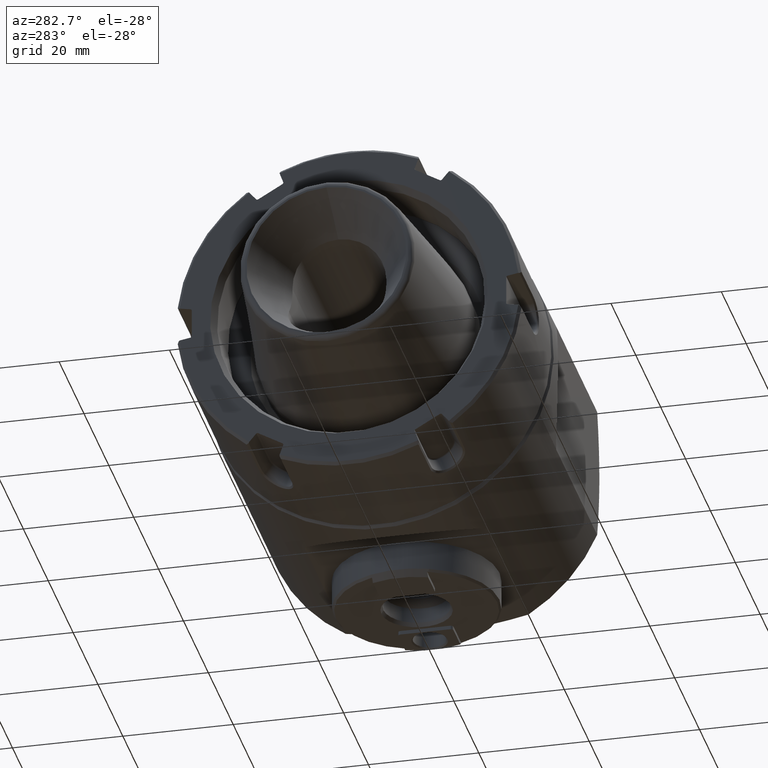
[diagram: clean part render]
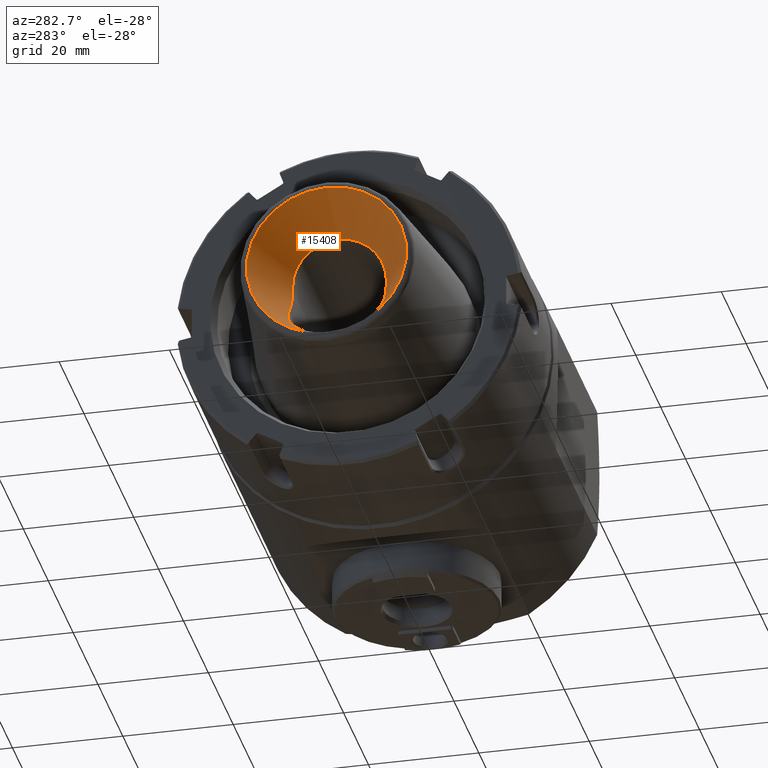
[diagram: same view with one face highlighted and labeled with its STEP entity id]
A machine part, auxiliary view. The second image highlights one B-rep face of the part: STEP entity #15408.
In plain terms, the highlighted conical surface has half-angle 30 deg.
Its self-contained STEP definition (entity closure, byte-faithful):
#375 = CARTESIAN_POINT ( 'NONE',  ( -41.62357660211500100, 0.6016993642104147000, -13.98470534563379900 ) ) ;
#484 = CARTESIAN_POINT ( 'NONE',  ( -36.41542795255660500, 8.340888947746762500, -7.154654502034642100 ) ) ;
#547 = ORIENTED_EDGE ( 'NONE', *, *, #4400, .T. ) ;
#571 = CARTESIAN_POINT ( 'NONE',  ( -36.62359291228537500, -8.350133785200505100, -7.378962801336557600 ) ) ;
#676 = CARTESIAN_POINT ( 'NONE',  ( -39.24026204300471200, 6.763960253452825800, -10.65492165973789800 ) ) ;
#779 = CARTESIAN_POINT ( 'NONE',  ( -41.24376904555434500, -3.120540852876987800, -13.43013070009230800 ) ) ;
#1168 = CARTESIAN_POINT ( 'NONE',  ( -34.92094120700150500, 8.500000000000003600, -5.500000000000000000 ) ) ;
#1179 = CARTESIAN_POINT ( 'NONE',  ( -32.94594722981266700, 2.212921603388399800, 8.711607772922752300 ) ) ;
#1300 = VERTEX_POINT ( 'NONE', #25104 ) ;
#1383 = CARTESIAN_POINT ( 'NONE',  ( -32.97245384754072700, -0.5498109188524646900, 8.986834180173476100 ) ) ;
#1492 = CARTESIAN_POINT ( 'NONE',  ( -32.76991501545869300, 5.626468428842378500, 6.895345204134754300 ) ) ;
#1683 = CARTESIAN_POINT ( 'NONE',  ( -32.96320677942300400, -1.386604485480722900, 8.890765297542261100 ) ) ;
#1711 = VERTEX_POINT ( 'NONE', #1168 ) ;
#2553 = CARTESIAN_POINT ( 'NONE',  ( -33.47352028211558000, 8.500000000000001800, -3.766917833987092100 ) ) ;
#2604 = B_SPLINE_CURVE_WITH_KNOTS ( 'NONE', 3,
 ( #16463, #21286, #6982, #2553, #7287, #23444, #26130, #16782, #16873, #25830, #17278, #26533, #24271, #3154 ),
 .UNSPECIFIED., .F., .F.,
 ( 4, 2, 2, 2, 2, 2, 4 ),
 ( 0.04185788804350051900, 0.04354466969871030600, 0.04523145135392009400, 0.04607484218152498700, 0.04691823300912988100, 0.04776162383673478200, 0.04860501466433967500 ),
 .UNSPECIFIED. ) ;
#2761 = EDGE_CURVE ( 'NONE', #1300, #24038, #23268, .T. ) ;
#2773 = CARTESIAN_POINT ( 'NONE',  ( -37.22919258266909300, 8.092203969601076400, -8.113429070541712900 ) ) ;
#2870 = CARTESIAN_POINT ( 'NONE',  ( -34.92094120700150500, 8.500000000000003600, -5.500000000000000000 ) ) ;
#2964 = CARTESIAN_POINT ( 'NONE',  ( -39.40274078780929300, 6.593858561502252700, -10.87105990789311200 ) ) ;
#3067 = CARTESIAN_POINT ( 'NONE',  ( -40.64162835531909900, -4.726422937569831900, -12.57109599155679900 ) ) ;
#3154 = CARTESIAN_POINT ( 'NONE',  ( -32.13314449400395000, 8.500000000000001800, 0.5000000000000000000 ) ) ;
#3161 = CARTESIAN_POINT ( 'NONE',  ( -38.90229333734145500, 7.080495510305073700, -10.21072807078420500 ) ) ;
#3191 = VERTEX_POINT ( 'NONE', #4654 ) ;
#3859 = CARTESIAN_POINT ( 'NONE',  ( -32.88915544760107700, 3.769600984441432000, 8.123503159228253200 ) ) ;
#4273 = CARTESIAN_POINT ( 'NONE',  ( -32.41132891258876500, -8.500000000000001800, -1.754179349024693300 ) ) ;
#4349 = EDGE_CURVE ( 'NONE', #16169, #16169, #24496, .T. ) ;
#4350 = CARTESIAN_POINT ( 'NONE',  ( -32.55949977964554900, -7.365159722976817300, 4.752287306826651100 ) ) ;
#4400 = EDGE_CURVE ( 'NONE', #3191, #1300, #13438, .T. ) ;
#4654 = CARTESIAN_POINT ( 'NONE',  ( -32.13314449400395000, 8.500000000000001800, 0.5000000000000000000 ) ) ;
#5111 = CARTESIAN_POINT ( 'NONE',  ( -40.15013538908900900, 5.617659663406736400, -11.88542350136718200 ) ) ;
#5219 = CARTESIAN_POINT ( 'NONE',  ( -41.57642585859112200, 1.237529174319250000, -13.91550880635429600 ) ) ;
#5319 = CARTESIAN_POINT ( 'NONE',  ( -38.72723439070662000, 7.226367522329489600, -9.983266874843714300 ) ) ;
#5507 = CARTESIAN_POINT ( 'NONE',  ( -40.86387433014609600, -4.217676070712312400, -12.88584327407085400 ) ) ;
#5915 = CARTESIAN_POINT ( 'NONE',  ( -32.55919361914128300, 7.382834682675247800, 4.748696930307756900 ) ) ;
#6027 = CARTESIAN_POINT ( 'NONE',  ( -32.93028221736538100, 2.745571098532284100, 8.549184032060178900 ) ) ;
#6224 = CARTESIAN_POINT ( 'NONE',  ( -32.13314449400395000, 8.500000000000001800, 0.5000000000000000000 ) ) ;
#6246 = CARTESIAN_POINT ( 'NONE',  ( -34.16589989647840000, -8.500000000000001800, -4.666431962360143800 ) ) ;
#6333 = CARTESIAN_POINT ( 'NONE',  ( -32.90104760083484300, -3.509943185076740000, 8.246485513787979100 ) ) ;
#6524 = CARTESIAN_POINT ( 'NONE',  ( -32.65099510663089400, -6.761797742208182500, 5.680170602532512300 ) ) ;
#6982 = CARTESIAN_POINT ( 'NONE',  ( -34.16589989647840000, 8.500000000000003600, -4.666431962360146500 ) ) ;
#7175 = DIRECTION ( 'NONE',  ( 0.0000000000000000000, 0.0000000000000000000, 1.000000000000000000 ) ) ;
#7287 = CARTESIAN_POINT ( 'NONE',  ( -33.15021862702704400, 8.500000000000005300, -3.289395833066999700 ) ) ;
#7500 = CARTESIAN_POINT ( 'NONE',  ( -41.38692368510027800, 2.471754276345374800, -13.63863104905494300 ) ) ;
#7566 = CARTESIAN_POINT ( 'NONE',  ( -42.50000000000001400, 0.0000000000000000000, 0.0000000000000000000 ) ) ;
#7692 = CARTESIAN_POINT ( 'NONE',  ( -41.24725134210640200, 3.060395495769783200, -13.43604838472806600 ) ) ;
#7890 = AXIS2_PLACEMENT_3D ( 'NONE', #24659, #29782, #20335 ) ;
#7896 = CARTESIAN_POINT ( 'NONE',  ( -40.26704245411199400, -5.428442362108654600, -12.04725905589530700 ) ) ;
#8385 = CARTESIAN_POINT ( 'NONE',  ( -32.95257408573875300, 1.940108714967724500, 8.780379128559351500 ) ) ;
#8479 = CARTESIAN_POINT ( 'NONE',  ( -32.43419030000310200, 7.961667135377039600, 3.489850016703999600 ) ) ;
#8495 = CARTESIAN_POINT ( 'NONE',  ( -34.53606089955118100, -8.500000000000005300, -5.090961387397044300 ) ) ;
#8807 = CARTESIAN_POINT ( 'NONE',  ( -32.74530282732651900, -8.500000000000001800, -2.539682007511249400 ) ) ;
#8917 = EDGE_LOOP ( 'NONE', ( #22850, #547, #22208, #29848 ) ) ;
#9003 = CARTESIAN_POINT ( 'NONE',  ( -32.93196815502135200, -2.737143954203102400, 8.566535742507049600 ) ) ;
#9879 = CARTESIAN_POINT ( 'NONE',  ( -41.44562162598223400, 2.170746408544962600, -13.72420006736099300 ) ) ;
#10077 = CARTESIAN_POINT ( 'NONE',  ( -37.81684376440740200, 7.838059031405414600, -8.827151482833848200 ) ) ;
#10171 = CARTESIAN_POINT ( 'NONE',  ( -40.13142628780800400, -5.646853605635870500, -11.85961486572505700 ) ) ;
#10855 = CARTESIAN_POINT ( 'NONE',  ( -32.84956894533945600, 4.502685864225737700, 7.714840315236569900 ) ) ;
#11160 = CARTESIAN_POINT ( 'NONE',  ( -32.96718935089919700, -1.108017044078168700, 8.932137610255324500 ) ) ;
#11177 = CARTESIAN_POINT ( 'NONE',  ( -33.15021862702702300, -8.500000000000001800, -3.289395833066991200 ) ) ;
#11335 = CARTESIAN_POINT ( 'NONE',  ( -42.50000000000001400, 0.0000000000000000000, 14.50000000000000000 ) ) ;
#11350 = CARTESIAN_POINT ( 'NONE',  ( -32.80503443451120700, -5.187667854970165100, 7.256148644639314000 ) ) ;
#11644 = B_SPLINE_CURVE_WITH_KNOTS ( 'NONE', 3,
 ( #23974, #12127, #571, #24277, #17086, #19638, #26342, #21994, #12434, #10171, #7896, #14822, #3067, #5507, #28984, #779, #19329, #14520, #24376, #28685, #19235, #375, #5219, #14620, #9879, #7500, #7692, #16883, #19536, #26646, #26543, #5111, #12543, #17287, #2964, #676, #3161, #5319, #12338, #10077, #2773, #21591, #12235, #484, #16981, #21684, #2870 ),
 .UNSPECIFIED., .F., .F.,
 ( 4, 2, 2, 2, 2, 2, 2, 2, 2, 2, 1, 2, 2, 2, 2, 2, 2, 2, 2, 2, 2, 2, 2, 4 ),
 ( 2.707591325378021300E-007, 0.003788974440146537800, 0.005683326280653538400, 0.007577678121160538200, 0.008524854041414045900, 0.009472029961667551000, 0.01041920588192105800, 0.01136638180217456500, 0.01326073364268158200, 0.01420790956293508900, 0.01515508548318859500, 0.01610226140344210600, 0.01704943732369560900, 0.01799661324394911900, 0.01894378916420263000, 0.02083814100470964700, 0.02178531692496315700, 0.02273249284521666400, 0.02367966876547017800, 0.02462684468572368800, 0.02652119652623071600, 0.02746837244648423600, 0.02841554836673775700, 0.03030990020724480200 ),
 .UNSPECIFIED. ) ;
#12127 = CARTESIAN_POINT ( 'NONE',  ( -35.79870585427198600, -8.500000000000003600, -6.432860493408791000 ) ) ;
#12235 = CARTESIAN_POINT ( 'NONE',  ( -36.62145936542440000, 8.290081941201197700, -7.393632063974503200 ) ) ;
#12338 = CARTESIAN_POINT ( 'NONE',  ( -38.19121923658833100, 7.623809888715327600, -9.295760863927535300 ) ) ;
#12434 = CARTESIAN_POINT ( 'NONE',  ( -39.84408995184702500, -6.061221731009871900, -11.46600771130641800 ) ) ;
#12543 = CARTESIAN_POINT ( 'NONE',  ( -39.86429535464618800, 6.034015555352858100, -11.49352898244758600 ) ) ;
#12937 = CARTESIAN_POINT ( 'NONE',  ( -32.35446476391685200, 8.217187451259388100, 2.692094229412426400 ) ) ;
#13143 = CARTESIAN_POINT ( 'NONE',  ( -32.96845358805730800, 1.114805569143539000, 8.945235929049388800 ) ) ;
#13262 = CARTESIAN_POINT ( 'NONE',  ( -32.18669152154372900, -8.500000000000000000, -0.9235989081377933300 ) ) ;
#13438 = B_SPLINE_CURVE_WITH_KNOTS ( 'NONE', 3,
 ( #6224, #22602, #27041, #27437, #12937, #15422, #8479, #29376, #5915, #20132, #24969, #1492, #22403, #10855, #17975, #3859, #15328, #6027, #1179, #8385, #13143, #29578, #15532, #1383, #11160, #1683, #22888, #9003, #6333, #25587, #15835, #18268, #11350, #30161, #18170, #6524, #22788, #4350, #13851, #13750, #18369, #30266, #15934, #13533, #20428 ),
 .UNSPECIFIED., .F., .F.,
 ( 4, 2, 2, 2, 2, 2, 2, 2, 1, 2, 2, 2, 2, 2, 2, 2, 2, 2, 2, 2, 2, 2, 4 ),
 ( 1.981851470362515800E-007, 0.001664797804958657700, 0.002497097614864468600, 0.003329397424770279300, 0.004993997044581898100, 0.006658596664393516000, 0.008323196284205134800, 0.009155496094110945500, 0.009987795904016758000, 0.01082009571392257000, 0.01165239552382838100, 0.01331699514364000600, 0.01414929495354581800, 0.01498159476345163100, 0.01664619438326325400, 0.01747849419316906800, 0.01831079400307487900, 0.01997539362288650400, 0.02163999324269813200, 0.02247229305260394300, 0.02330459286250975400, 0.02496919248232137200, 0.02663379210213298600 ),
 .UNSPECIFIED. ) ;
#13533 = CARTESIAN_POINT ( 'NONE',  ( -32.19009684022731200, -8.500000000000003600, 1.059950957584718800 ) ) ;
#13657 = CARTESIAN_POINT ( 'NONE',  ( -32.32131194496133000, -8.500000000000001800, -1.479006035496435800 ) ) ;
#13750 = CARTESIAN_POINT ( 'NONE',  ( -32.48562098320420000, -7.747925205785974400, 4.006716034746551400 ) ) ;
#13851 = CARTESIAN_POINT ( 'NONE',  ( -32.51087404229381400, -7.627655377160920100, 4.261169835573380900 ) ) ;
#14277 = DIRECTION ( 'NONE',  ( -1.000000000000000000, -0.0000000000000000000, -0.0000000000000000000 ) ) ;
#14520 = CARTESIAN_POINT ( 'NONE',  ( -41.53185333733420500, -1.619795160799494300, -13.85016447721028900 ) ) ;
#14620 = CARTESIAN_POINT ( 'NONE',  ( -41.54030046973482400, 1.554880394748296500, -13.86253273095052800 ) ) ;
#14822 = CARTESIAN_POINT ( 'NONE',  ( -40.52214133019637600, -4.968222884195541600, -12.40299565382266600 ) ) ;
#15328 = CARTESIAN_POINT ( 'NONE',  ( -32.91215884078668800, 3.267837447068399300, 8.361390376708595100 ) ) ;
#15408 = ADVANCED_FACE ( 'NONE', ( #27611, #17322 ), #30526, .F. ) ;
#15422 = CARTESIAN_POINT ( 'NONE',  ( -32.40775907703787300, 8.056203941490736000, 3.224889864355467800 ) ) ;
#15532 = CARTESIAN_POINT ( 'NONE',  ( -32.97374037597245400, -0.2713874887659720200, 9.000205950550292000 ) ) ;
#15685 = CARTESIAN_POINT ( 'NONE',  ( -34.92094120700150500, -8.500000000000003600, -5.499999999999999100 ) ) ;
#15835 = CARTESIAN_POINT ( 'NONE',  ( -32.86382262323243000, -4.258044427957567100, 7.861878575636837700 ) ) ;
#15934 = CARTESIAN_POINT ( 'NONE',  ( -32.24675791259314700, -8.444028796532201400, 1.620346220888160000 ) ) ;
#16169 = VERTEX_POINT ( 'NONE', #11335 ) ;
#16463 = CARTESIAN_POINT ( 'NONE',  ( -34.92094120700150500, 8.500000000000003600, -5.500000000000000000 ) ) ;
#16620 = EDGE_CURVE ( 'NONE', #24038, #1711, #11644, .T. ) ;
#16782 = CARTESIAN_POINT ( 'NONE',  ( -32.41132891258877900, 8.500000000000001800, -1.754179349024703700 ) ) ;
#16873 = CARTESIAN_POINT ( 'NONE',  ( -32.32131194496135200, 8.500000000000003600, -1.479006035496445600 ) ) ;
#16883 = CARTESIAN_POINT ( 'NONE',  ( -41.16570838470372700, 3.349663388453418800, -13.31821793449467100 ) ) ;
#16981 = CARTESIAN_POINT ( 'NONE',  ( -35.78923583683764100, 8.461616865366060800, -6.440361559583765300 ) ) ;
#17086 = CARTESIAN_POINT ( 'NONE',  ( -38.17341401655838200, -7.634743580435831200, -9.273337455175934000 ) ) ;
#17278 = CARTESIAN_POINT ( 'NONE',  ( -32.14155709424063200, 8.500000000000001800, -0.6428691025033936900 ) ) ;
#17287 = CARTESIAN_POINT ( 'NONE',  ( -39.71475613999300700, 6.228882316861128000, -11.29036098580806100 ) ) ;
#17322 = FACE_OUTER_BOUND ( 'NONE', #28359, .T. ) ;
#17975 = CARTESIAN_POINT ( 'NONE',  ( -32.86365650281166500, 4.260946913816093600, 7.860164631195830900 ) ) ;
#18085 = EDGE_CURVE ( 'NONE', #1711, #3191, #2604, .T. ) ;
#18170 = CARTESIAN_POINT ( 'NONE',  ( -32.69320306605260400, -6.409912463330105200, 6.110505086759744100 ) ) ;
#18185 = CARTESIAN_POINT ( 'NONE',  ( -32.14155709424062500, -8.500000000000001800, -0.6428691025033896900 ) ) ;
#18268 = CARTESIAN_POINT ( 'NONE',  ( -32.84993952021133600, -4.496418066715930800, 7.718662281877351800 ) ) ;
#18284 = CARTESIAN_POINT ( 'NONE',  ( -32.10420381639593800, -8.500000000000003600, 0.2154575497880550100 ) ) ;
#18369 = CARTESIAN_POINT ( 'NONE',  ( -32.40888013405206200, -8.067016065952357100, 3.235481888603033400 ) ) ;
#19235 = CARTESIAN_POINT ( 'NONE',  ( -41.64598793993052100, -0.03373244682211539600, -14.01766855260956200 ) ) ;
#19329 = CARTESIAN_POINT ( 'NONE',  ( -41.38540066412301900, -2.539088122431389500, -13.63627458633150800 ) ) ;
#19536 = CARTESIAN_POINT ( 'NONE',  ( -40.89112967563091400, 4.184879821437112600, -12.92400746422884200 ) ) ;
#19638 = CARTESIAN_POINT ( 'NONE',  ( -38.88636450251200900, -7.110528881203161500, -10.18697814366736100 ) ) ;
#20132 = CARTESIAN_POINT ( 'NONE',  ( -32.65020647719995800, 6.768060470361009000, 5.672139888562164800 ) ) ;
#20335 = DIRECTION ( 'NONE',  ( 0.0000000000000000000, 0.0000000000000000000, 1.000000000000000000 ) ) ;
#20351 = CARTESIAN_POINT ( 'NONE',  ( -32.10005616707355400, -8.500000000000001800, -0.07475432425700809200 ) ) ;
#20428 = CARTESIAN_POINT ( 'NONE',  ( -32.13314449400395000, -8.500000000000001800, 0.5000000000000000000 ) ) ;
#20754 = CARTESIAN_POINT ( 'NONE',  ( -32.62311095818260000, -8.500000000000000000, -2.283330099505388700 ) ) ;
#21286 = CARTESIAN_POINT ( 'NONE',  ( -34.53606089955117400, 8.500000000000003600, -5.090961387397047800 ) ) ;
#21591 = CARTESIAN_POINT ( 'NONE',  ( -37.02830740263788600, 8.165803357276479000, -7.872963656661168500 ) ) ;
#21684 = CARTESIAN_POINT ( 'NONE',  ( -35.36100382479957500, 8.500000000000003600, -5.967684625994479600 ) ) ;
#21994 = CARTESIAN_POINT ( 'NONE',  ( -39.69198426539344400, -6.257377202856225100, -11.25955200916415300 ) ) ;
#22208 = ORIENTED_EDGE ( 'NONE', *, *, #2761, .T. ) ;
#22403 = CARTESIAN_POINT ( 'NONE',  ( -32.80422542839163900, 5.198965284733126200, 7.247826541426831200 ) ) ;
#22602 = CARTESIAN_POINT ( 'NONE',  ( -32.19009639116523400, 8.500000000000005300, 1.059946542441911400 ) ) ;
#22621 = CARTESIAN_POINT ( 'NONE',  ( -33.47352028211558700, -8.500000000000003600, -3.766917833987086800 ) ) ;
#22788 = CARTESIAN_POINT ( 'NONE',  ( -32.58297904559719900, -7.222622023838966700, 4.990016719927085700 ) ) ;
#22850 = ORIENTED_EDGE ( 'NONE', *, *, #18085, .T. ) ;
#22888 = CARTESIAN_POINT ( 'NONE',  ( -32.94748632154476600, -2.206294717497083300, 8.727558612974004100 ) ) ;
#23268 = B_SPLINE_CURVE_WITH_KNOTS ( 'NONE', 3,
 ( #29985, #18284, #20351, #18185, #13262, #13657, #4273, #20754, #8807, #11177, #22621, #6246, #8495, #25288 ),
 .UNSPECIFIED., .F., .F.,
 ( 4, 2, 2, 2, 2, 2, 4 ),
 ( 0.01516347115015014200, 0.01600559269414686100, 0.01684771423814358100, 0.01768983578214029800, 0.01853195732613701500, 0.02021620041413044500, 0.02190044350212387200 ),
 .UNSPECIFIED. ) ;
#23444 = CARTESIAN_POINT ( 'NONE',  ( -32.74530282732653300, 8.500000000000003600, -2.539682007511258300 ) ) ;
#23974 = CARTESIAN_POINT ( 'NONE',  ( -34.92094120700150500, -8.500000000000003600, -5.499999999999999100 ) ) ;
#24038 = VERTEX_POINT ( 'NONE', #15685 ) ;
#24271 = CARTESIAN_POINT ( 'NONE',  ( -32.10420381639594500, 8.500000000000001800, 0.2154575497880521200 ) ) ;
#24277 = CARTESIAN_POINT ( 'NONE',  ( -37.79277936205935600, -7.850371804168396700, -8.797418899109755900 ) ) ;
#24376 = CARTESIAN_POINT ( 'NONE',  ( -41.56970664466680200, -1.302643521236890500, -13.90565647940958300 ) ) ;
#24496 = CIRCLE ( 'NONE', #7890, 14.50000000000000000 ) ;
#24659 = CARTESIAN_POINT ( 'NONE',  ( -42.50000000000001400, 0.0000000000000000000, 0.0000000000000000000 ) ) ;
#24969 = CARTESIAN_POINT ( 'NONE',  ( -32.69315321450350400, 6.409790115209116100, 6.110006946499880500 ) ) ;
#25104 = CARTESIAN_POINT ( 'NONE',  ( -32.13314449400395000, -8.500000000000001800, 0.5000000000000000000 ) ) ;
#25288 = CARTESIAN_POINT ( 'NONE',  ( -34.92094120700150500, -8.500000000000003600, -5.499999999999999100 ) ) ;
#25587 = CARTESIAN_POINT ( 'NONE',  ( -32.88938022139538500, -3.764966627054720000, 8.125826172294081200 ) ) ;
#25830 = CARTESIAN_POINT ( 'NONE',  ( -32.18669152154372900, 8.500000000000001800, -0.9235989081378027700 ) ) ;
#26130 = CARTESIAN_POINT ( 'NONE',  ( -32.62311095818260800, 8.500000000000001800, -2.283330099505398400 ) ) ;
#26342 = CARTESIAN_POINT ( 'NONE',  ( -39.22160224633150700, -6.801573823529445000, -10.62810186554882800 ) ) ;
#26533 = CARTESIAN_POINT ( 'NONE',  ( -32.10005616707354600, 8.499999999999998200, -0.07475432425701111800 ) ) ;
#26543 = CARTESIAN_POINT ( 'NONE',  ( -40.28710568868155700, 5.394865176129239400, -12.07509187804939900 ) ) ;
#26646 = CARTESIAN_POINT ( 'NONE',  ( -40.67074536619850300, 4.694213899603701300, -12.61055340732209900 ) ) ;
#27041 = CARTESIAN_POINT ( 'NONE',  ( -32.24577922140888100, 8.445209607431339200, 1.610654771175797500 ) ) ;
#27437 = CARTESIAN_POINT ( 'NONE',  ( -32.32751789025557100, 8.284127810545577100, 2.423410058227804900 ) ) ;
#27611 = FACE_BOUND ( 'NONE', #8917, .T. ) ;
#27691 = ORIENTED_EDGE ( 'NONE', *, *, #4349, .T. ) ;
#28359 = EDGE_LOOP ( 'NONE', ( #27691 ) ) ;
#28685 = CARTESIAN_POINT ( 'NONE',  ( -41.62016622913364500, -0.6683860815968892800, -13.97969345195852700 ) ) ;
#28984 = CARTESIAN_POINT ( 'NONE',  ( -40.96724872305009100, -3.948654498488252800, -13.03338003059209300 ) ) ;
#29376 = CARTESIAN_POINT ( 'NONE',  ( -32.51091612694398200, 7.642962394740741200, 4.260919119083720100 ) ) ;
#29578 = CARTESIAN_POINT ( 'NONE',  ( -32.97368023292712300, 0.5619017448180266800, 8.999580925697895100 ) ) ;
#29782 = DIRECTION ( 'NONE',  ( -1.000000000000000000, -0.0000000000000000000, -0.0000000000000000000 ) ) ;
#29848 = ORIENTED_EDGE ( 'NONE', *, *, #16620, .T. ) ;
#29936 = AXIS2_PLACEMENT_3D ( 'NONE', #7566, #14277, #7175 ) ;
#29985 = CARTESIAN_POINT ( 'NONE',  ( -32.13314449400395000, -8.500000000000001800, 0.5000000000000000000 ) ) ;
#30161 = CARTESIAN_POINT ( 'NONE',  ( -32.77078964427415300, -5.616904588497893000, 6.904305423683577900 ) ) ;
#30266 = CARTESIAN_POINT ( 'NONE',  ( -32.35600528749142100, -8.227224666294748800, 2.706710733565854900 ) ) ;
#30526 = CONICAL_SURFACE ( 'NONE', #29936, 14.50000000000000000, 0.5235987755983001500 ) ;